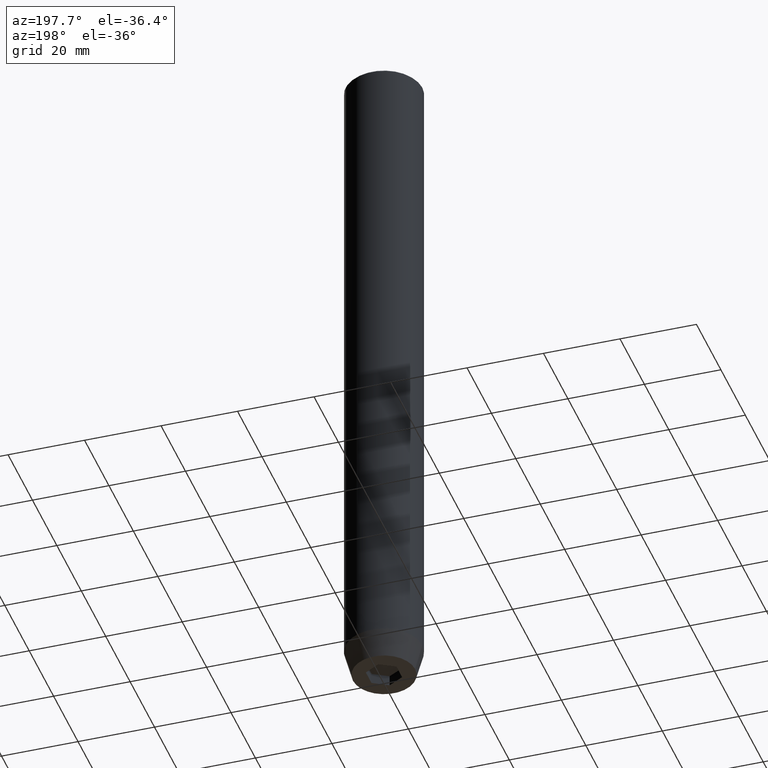
[diagram: clean part render]
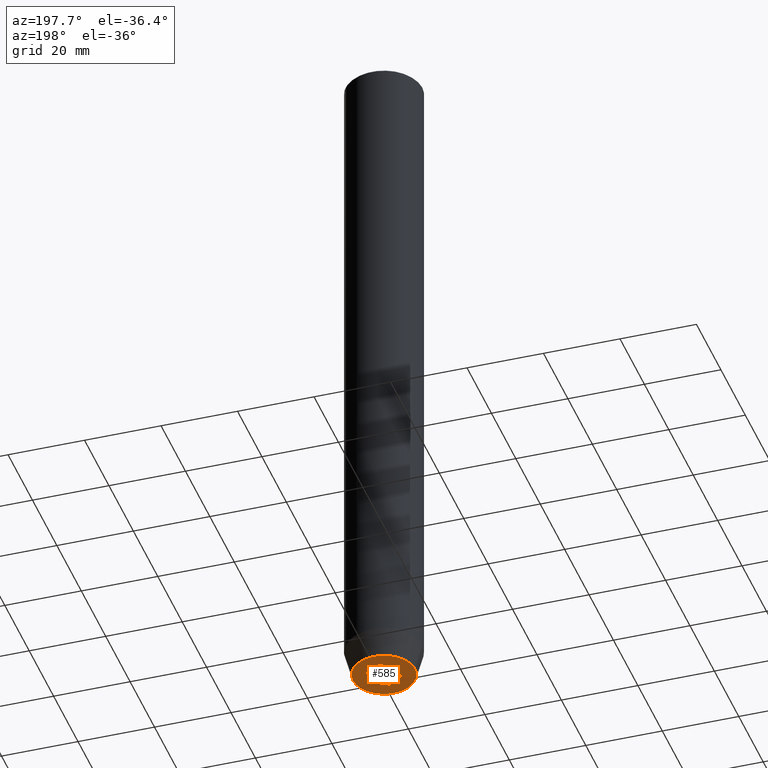
[diagram: same view with one face highlighted and labeled with its STEP entity id]
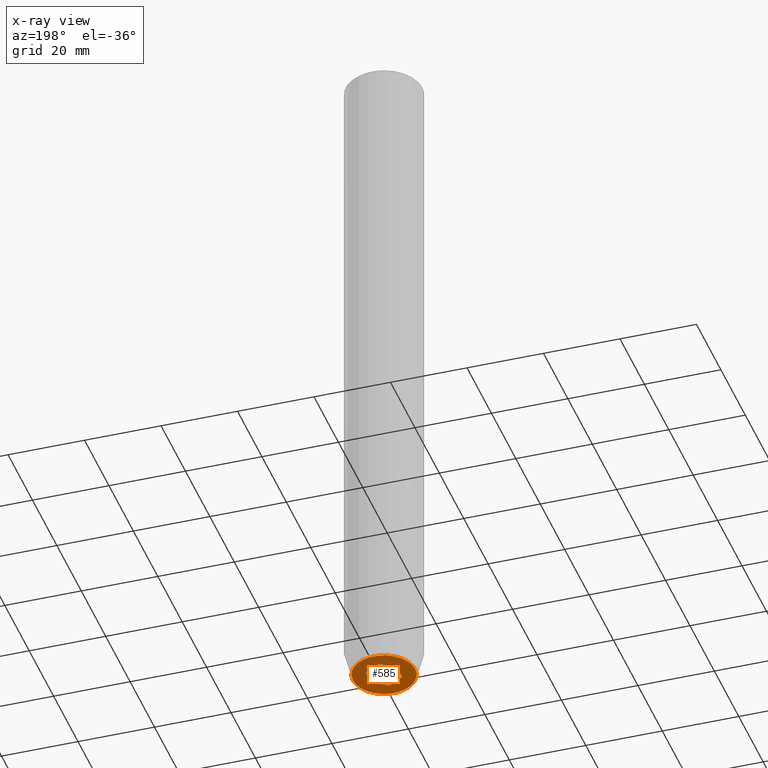
[diagram: x-ray of the same camera — body ghosted, the highlighted face saturated]
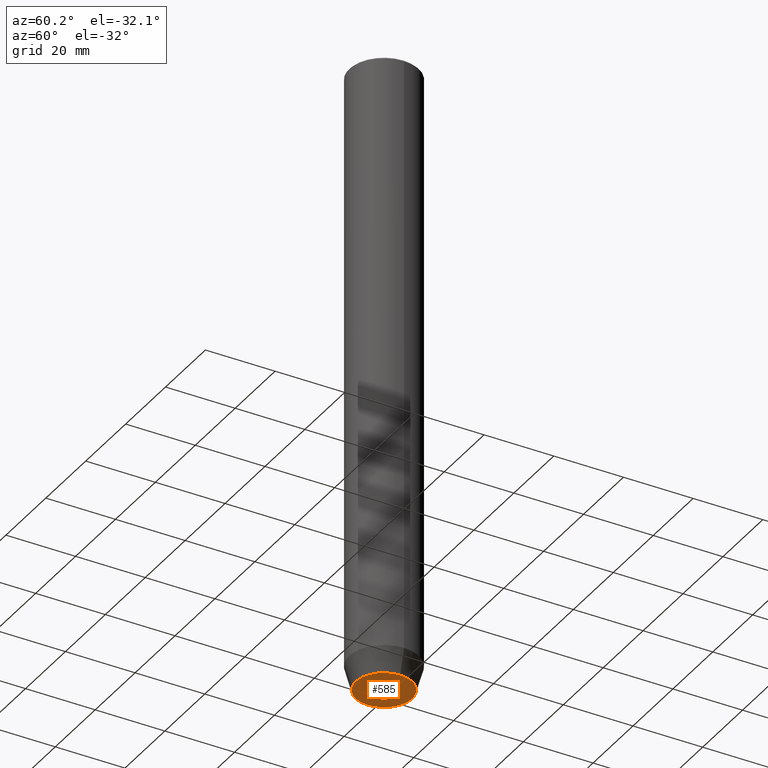
[diagram: same view with one face highlighted and labeled with its STEP entity id]
A machine part, auxiliary view. The second image highlights one B-rep face of the part: STEP entity #585.
The next image is the same camera in x-ray: the body ghosted, the highlighted face saturated — about 0% of this face is hidden behind the body in this view.
A second angle (auxiliary view) of the same face is appended — the face is thin or edge-on in the first view.
In plain terms, the highlighted planar face has unit normal (0, 0, -1).
Its self-contained STEP definition (entity closure, byte-faithful):
#3 = PLANE ( 'NONE',  #270 ) ;
#5 = DIRECTION ( 'NONE',  ( 0.000000000000000000, -1.000000000000000000, 0.000000000000000000 ) ) ;
#22 = DIRECTION ( 'NONE',  ( -0.000000000000000000, -0.000000000000000000, 1.000000000000000000 ) ) ;
#38 = CARTESIAN_POINT ( 'NONE',  ( -8.124355652982135467, 1.109796706851640556E-15, -180.0000000000000000 ) ) ;
#47 = LINE ( 'NONE', #53, #175 ) ;
#49 = AXIS2_PLACEMENT_3D ( 'NONE', #400, #22, #568 ) ;
#52 = DIRECTION ( 'NONE',  ( 0.000000000000000000, 0.000000000000000000, -1.000000000000000000 ) ) ;
#53 = CARTESIAN_POINT ( 'NONE',  ( 2.000000000000000888, -3.464101615137754386, -180.0000000000000000 ) ) ;
#56 = CARTESIAN_POINT ( 'NONE',  ( 0.000000000000000000, 0.000000000000000000, -180.0000000000000000 ) ) ;
#63 = CARTESIAN_POINT ( 'NONE',  ( -2.000000000000000000, 3.464101615137754830, -180.0000000000000000 ) ) ;
#67 = ORIENTED_EDGE ( 'NONE', *, *, #272, .F. ) ;
#69 = CARTESIAN_POINT ( 'NONE',  ( -4.000000000000000000, 0.000000000000000000, -180.0000000000000000 ) ) ;
#70 = ORIENTED_EDGE ( 'NONE', *, *, #196, .F. ) ;
#104 = LINE ( 'NONE', #244, #551 ) ;
#126 = LINE ( 'NONE', #69, #362 ) ;
#128 = CARTESIAN_POINT ( 'NONE',  ( 2.168404344971008868E-16, 4.618802153517005848, -180.0000000000000000 ) ) ;
#129 = EDGE_CURVE ( 'NONE', #352, #524, #417, .T. ) ;
#137 = CARTESIAN_POINT ( 'NONE',  ( 0.000000000000000000, 8.124355652982135467, -180.0000000000000000 ) ) ;
#146 = CARTESIAN_POINT ( 'NONE',  ( 4.000000000000000000, -2.309401076758502480, -180.0000000000000000 ) ) ;
#147 = FACE_OUTER_BOUND ( 'NONE', #298, .T. ) ;
#152 = VERTEX_POINT ( 'NONE', #146 ) ;
#175 = VECTOR ( 'NONE', #195, 1000.000000000000114 ) ;
#176 = EDGE_CURVE ( 'NONE', #341, #560, #516, .T. ) ;
#187 = CIRCLE ( 'NONE', #49, 8.124355652982135467 ) ;
#195 = DIRECTION ( 'NONE',  ( -0.8660254037844384856, -0.5000000000000002220, 0.000000000000000000 ) ) ;
#196 = EDGE_CURVE ( 'NONE', #560, #152, #237, .T. ) ;
#214 = DIRECTION ( 'NONE',  ( -1.000000000000000000, 0.000000000000000000, -0.000000000000000000 ) ) ;
#226 = CARTESIAN_POINT ( 'NONE',  ( 8.124355652982135467, 0.000000000000000000, -180.0000000000000000 ) ) ;
#237 = LINE ( 'NONE', #428, #446 ) ;
#244 = CARTESIAN_POINT ( 'NONE',  ( -2.000000000000000888, -3.464101615137754386, -180.0000000000000000 ) ) ;
#261 = EDGE_CURVE ( 'NONE', #152, #472, #47, .T. ) ;
#263 = VERTEX_POINT ( 'NONE', #386 ) ;
#265 = CARTESIAN_POINT ( 'NONE',  ( 4.336808689942017736E-16, -4.618802153517006737, -180.0000000000000000 ) ) ;
#270 = AXIS2_PLACEMENT_3D ( 'NONE', #137, #52, #214 ) ;
#272 = EDGE_CURVE ( 'NONE', #472, #351, #104, .T. ) ;
#275 = EDGE_CURVE ( 'NONE', #351, #263, #126, .T. ) ;
#283 = CARTESIAN_POINT ( 'NONE',  ( 2.000000000000000444, 3.464101615137754386, -180.0000000000000000 ) ) ;
#287 = ORIENTED_EDGE ( 'NONE', *, *, #275, .F. ) ;
#291 = CARTESIAN_POINT ( 'NONE',  ( 4.000000000000000000, 2.309401076758503368, -180.0000000000000000 ) ) ;
#298 = EDGE_LOOP ( 'NONE', ( #579, #513 ) ) ;
#311 = VECTOR ( 'NONE', #565, 999.9999999999998863 ) ;
#334 = DIRECTION ( 'NONE',  ( -0.000000000000000000, -0.000000000000000000, 1.000000000000000000 ) ) ;
#337 = ORIENTED_EDGE ( 'NONE', *, *, #261, .F. ) ;
#341 = VERTEX_POINT ( 'NONE', #128 ) ;
#351 = VERTEX_POINT ( 'NONE', #370 ) ;
#352 = VERTEX_POINT ( 'NONE', #38 ) ;
#362 = VECTOR ( 'NONE', #534, 1000.000000000000000 ) ;
#370 = CARTESIAN_POINT ( 'NONE',  ( -4.000000000000000000, -2.309401076758503368, -180.0000000000000000 ) ) ;
#380 = DIRECTION ( 'NONE',  ( 1.000000000000000000, 0.000000000000000000, 0.000000000000000000 ) ) ;
#386 = CARTESIAN_POINT ( 'NONE',  ( -4.000000000000000000, 2.309401076758503368, -180.0000000000000000 ) ) ;
#400 = CARTESIAN_POINT ( 'NONE',  ( 0.000000000000000000, 0.000000000000000000, -180.0000000000000000 ) ) ;
#404 = VECTOR ( 'NONE', #471, 1000.000000000000000 ) ;
#415 = ORIENTED_EDGE ( 'NONE', *, *, #422, .F. ) ;
#417 = CIRCLE ( 'NONE', #587, 8.124355652982135467 ) ;
#422 = EDGE_CURVE ( 'NONE', #263, #341, #480, .T. ) ;
#428 = CARTESIAN_POINT ( 'NONE',  ( 4.000000000000000000, 0.000000000000000000, -180.0000000000000000 ) ) ;
#440 = EDGE_LOOP ( 'NONE', ( #415, #287, #67, #337, #70, #460 ) ) ;
#446 = VECTOR ( 'NONE', #5, 1000.000000000000000 ) ;
#460 = ORIENTED_EDGE ( 'NONE', *, *, #176, .F. ) ;
#471 = DIRECTION ( 'NONE',  ( 0.8660254037844385966, -0.5000000000000001110, 0.000000000000000000 ) ) ;
#472 = VERTEX_POINT ( 'NONE', #265 ) ;
#480 = LINE ( 'NONE', #63, #311 ) ;
#483 = DIRECTION ( 'NONE',  ( -0.8660254037844384856, 0.5000000000000002220, 0.000000000000000000 ) ) ;
#513 = ORIENTED_EDGE ( 'NONE', *, *, #129, .F. ) ;
#516 = LINE ( 'NONE', #283, #404 ) ;
#524 = VERTEX_POINT ( 'NONE', #226 ) ;
#534 = DIRECTION ( 'NONE',  ( 0.000000000000000000, 1.000000000000000000, 0.000000000000000000 ) ) ;
#547 = FACE_BOUND ( 'NONE', #440, .T. ) ;
#551 = VECTOR ( 'NONE', #483, 1000.000000000000114 ) ;
#557 = EDGE_CURVE ( 'NONE', #524, #352, #187, .T. ) ;
#560 = VERTEX_POINT ( 'NONE', #291 ) ;
#565 = DIRECTION ( 'NONE',  ( 0.8660254037844387076, 0.5000000000000001110, 0.000000000000000000 ) ) ;
#568 = DIRECTION ( 'NONE',  ( 1.000000000000000000, 0.000000000000000000, 0.000000000000000000 ) ) ;
#579 = ORIENTED_EDGE ( 'NONE', *, *, #557, .F. ) ;
#585 = ADVANCED_FACE ( 'NONE', ( #547, #147 ), #3, .T. ) ;
#587 = AXIS2_PLACEMENT_3D ( 'NONE', #56, #334, #380 ) ;